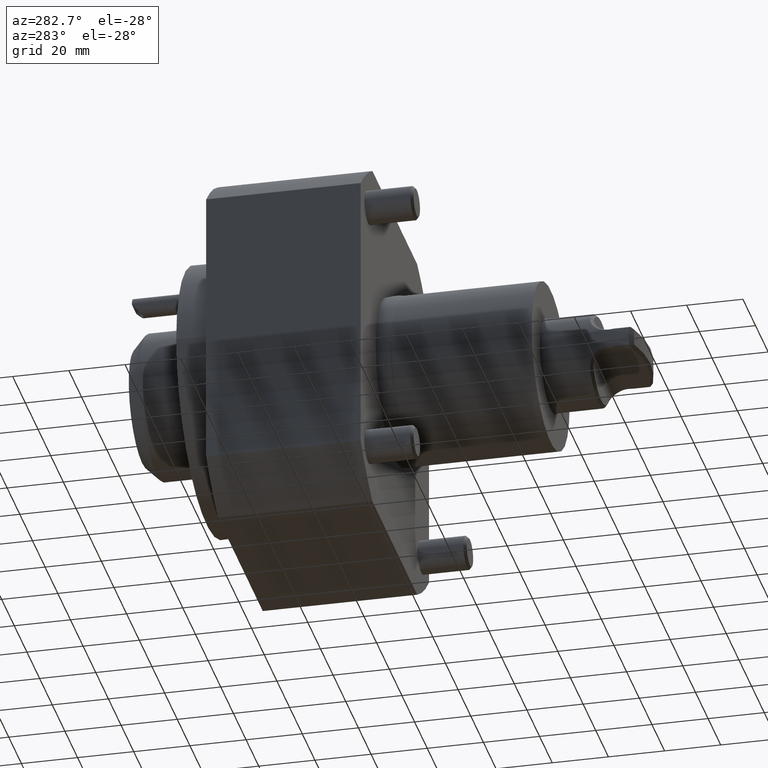
[diagram: clean part render]
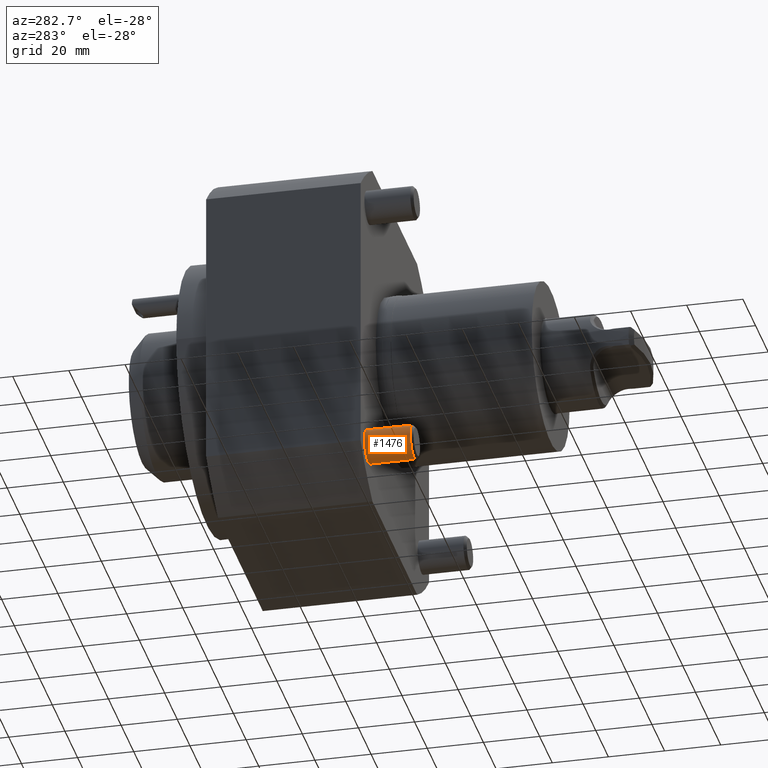
[diagram: same view with one face highlighted and labeled with its STEP entity id]
A machine part, auxiliary view. The second image highlights one B-rep face of the part: STEP entity #1476.
In plain terms, the highlighted cylindrical surface (bore or boss wall) has radius 6 mm, axis along (0, 1, 0).
Its self-contained STEP definition (entity closure, byte-faithful):
#1476 = ADVANCED_FACE ( 'Defeature completata1_220', ( #9493, #17294 ), #15848, .T. ) ;
#2069 = CARTESIAN_POINT ( 'NONE',  ( -38.44918376086177858, -16.33599999999983510, -51.83649708320699290 ) ) ;
#3084 = AXIS2_PLACEMENT_3D ( 'NONE', #6232, #3186, #7672 ) ;
#3186 = DIRECTION ( 'NONE',  ( 1.224646799147352961E-16, 1.000000000000000000, 0.000000000000000000 ) ) ;
#3221 = AXIS2_PLACEMENT_3D ( 'NONE', #19845, #8680, #16599 ) ;
#6070 = CARTESIAN_POINT ( 'NONE',  ( -41.99999999999998579, 86.44999999999991758, -47.00000000000000000 ) ) ;
#6232 = CARTESIAN_POINT ( 'NONE',  ( -42.00000000000000000, -16.33599999999983510, -47.00000000000000000 ) ) ;
#6558 = CIRCLE ( 'NONE', #3221, 5.999999999999894307 ) ;
#7672 = DIRECTION ( 'NONE',  ( 0.5918027065230578865, 0.000000000000000000, -0.8060828472011939416 ) ) ;
#8680 = DIRECTION ( 'NONE',  ( -1.224646799147353207E-16, -1.000000000000000000, -0.000000000000000000 ) ) ;
#9493 = FACE_OUTER_BOUND ( 'NONE', #15179, .T. ) ;
#10313 = EDGE_CURVE ( 'NONE', #11519, #11519, #16393, .T. ) ;
#11519 = VERTEX_POINT ( 'NONE', #2069 ) ;
#12312 = DIRECTION ( 'NONE',  ( 1.224646799147352961E-16, 1.000000000000000000, 0.000000000000000000 ) ) ;
#12456 = CARTESIAN_POINT ( 'NONE',  ( -36.00000000000010658, -7.347880794883986616E-16, -47.00000000000000000 ) ) ;
#13637 = EDGE_CURVE ( 'NONE', #20170, #20170, #6558, .T. ) ;
#15179 = EDGE_LOOP ( 'NONE', ( #17651 ) ) ;
#15848 = CYLINDRICAL_SURFACE ( 'NONE', #17677, 5.999999999999891642 ) ;
#16393 = CIRCLE ( 'NONE', #3084, 5.999999999999786837 ) ;
#16599 = DIRECTION ( 'NONE',  ( 1.000000000000000000, -1.224646799147352714E-16, 0.000000000000000000 ) ) ;
#17122 = EDGE_LOOP ( 'NONE', ( #17490 ) ) ;
#17294 = FACE_OUTER_BOUND ( 'NONE', #17122, .T. ) ;
#17490 = ORIENTED_EDGE ( 'NONE', *, *, #10313, .T. ) ;
#17651 = ORIENTED_EDGE ( 'NONE', *, *, #13637, .T. ) ;
#17677 = AXIS2_PLACEMENT_3D ( 'NONE', #6070, #12312, #20245 ) ;
#19845 = CARTESIAN_POINT ( 'NONE',  ( -42.00000000000000000, 0.000000000000000000, -47.00000000000000000 ) ) ;
#20170 = VERTEX_POINT ( 'NONE', #12456 ) ;
#20245 = DIRECTION ( 'NONE',  ( 0.5918027065230579975, 0.000000000000000000, -0.8060828472011938306 ) ) ;